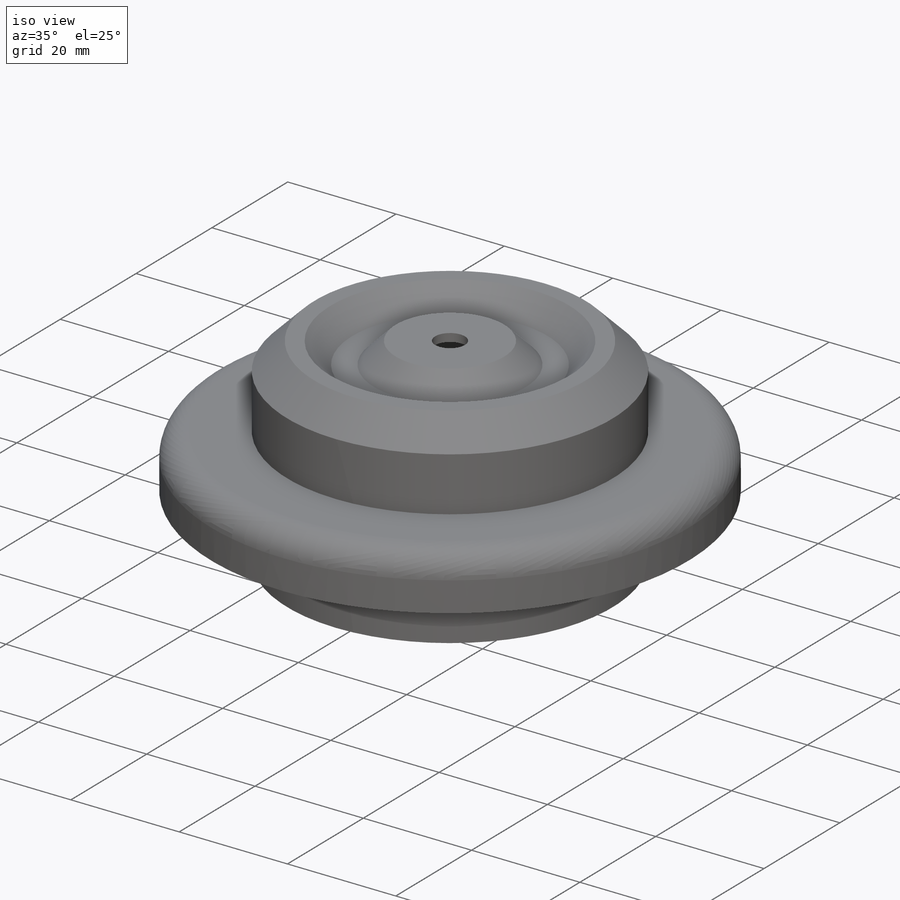
[diagram: iso view]
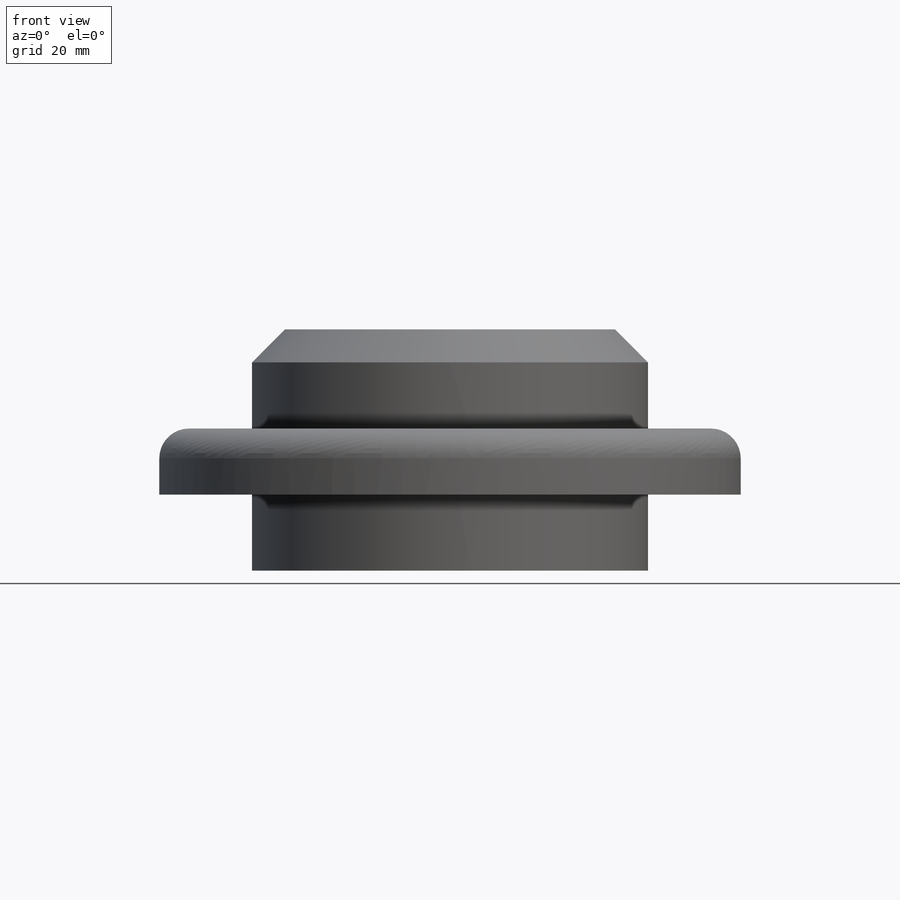
[diagram: front view]
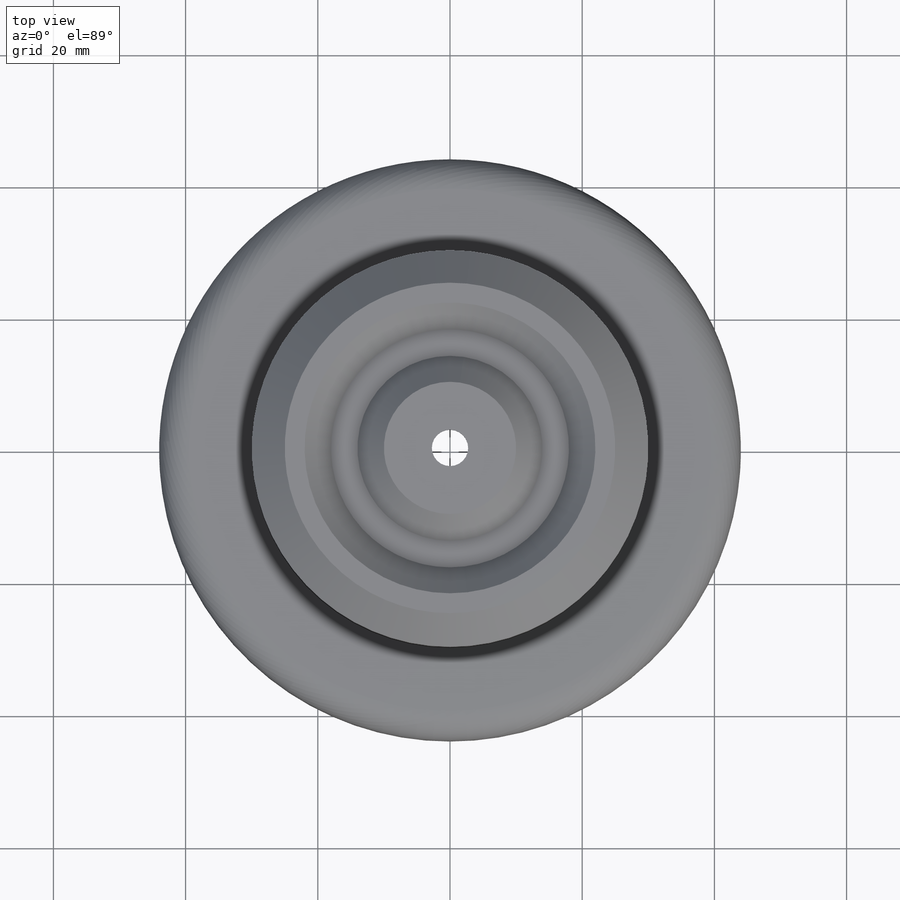
[diagram: top view]
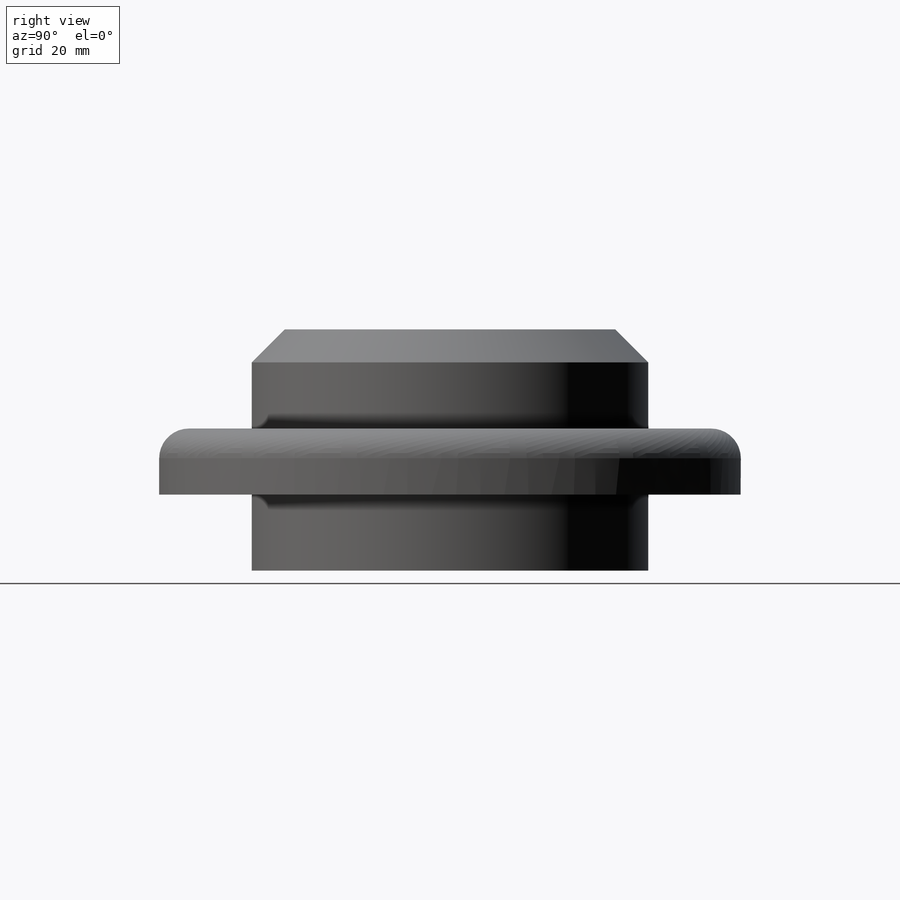
[diagram: right view]
SOLIDWORKS PART (.sldprt)
format: sldprt  version: not decoded by parser v0  size: 335,872 bytes
history: native  units: mm
features: plane x3, sketch x3, material x1, revolve x1, cut_extrude x1, extrude x1 (+9 scaffold rows collapsed)
feature tree (19):
  scaffold x9  (default folders/planes/origin — collapsed)
  material  "Сталь"
  plane  "Спереди"
  plane  "Сверху"
  plane  "Справа"
  sketch  "Эскиз1"  dims[c1.D11=3.0mm c1.D12=4.5mm c1.D1=88.0mm c1.D2=25.0mm c1.D3=10.0mm c1.D4=60.0mm c1.D5=~12.441622mm c2.D5=~102.74435deg c3.D5=~11.597297mm c4.D5=~12.74435deg c5.D5=~5.517128mm c6.D5=45.0deg c6.D6=50.0mm c6.D7=4.0mm c6.D8=4.0mm c7.D8=45.0deg c8.D8=20.0mm c8.D9=12.0mm c8.D10=1.5mm]
  revolve  "Повернуть2"  Angle=360deg
  sketch  "Эскиз2"  dims[D1=5.5mm]
  cut_extrude  "Вырез-Вытянуть1"  [1 undecoded]
  sketch  "Эскиз3"  dims[D1=1.5mm]
  extrude  "Бобышка-Вытянуть1"  Depth=20mm
decode coverage: 5 of 6 modeling features carry decoded parameters
note: ~ marks probable driven/reference dimensions
note: 1 parameter value undecoded
note: suppression state not decoded; provenance and decode notes live in map.json
